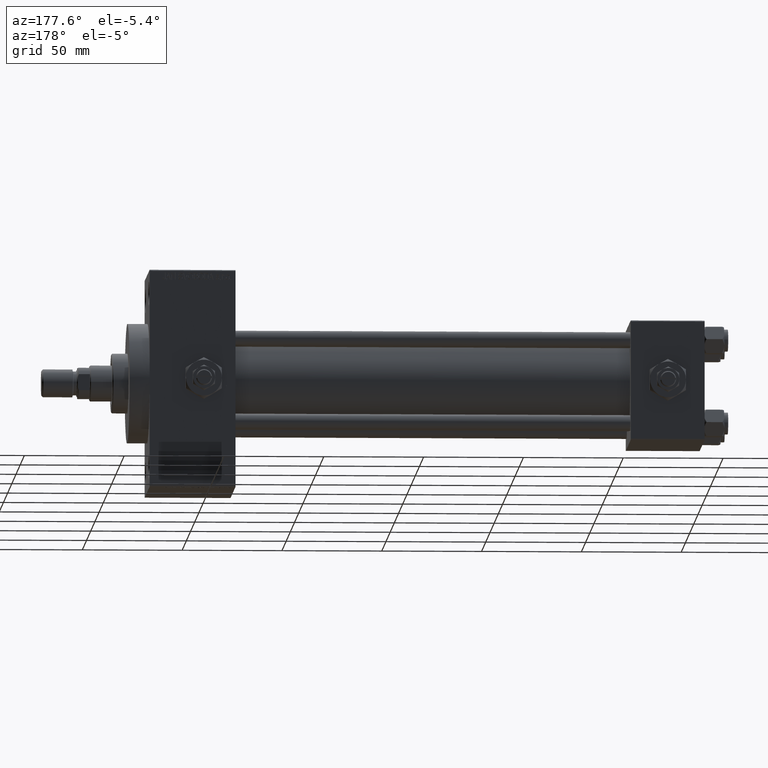
[diagram: clean part render]
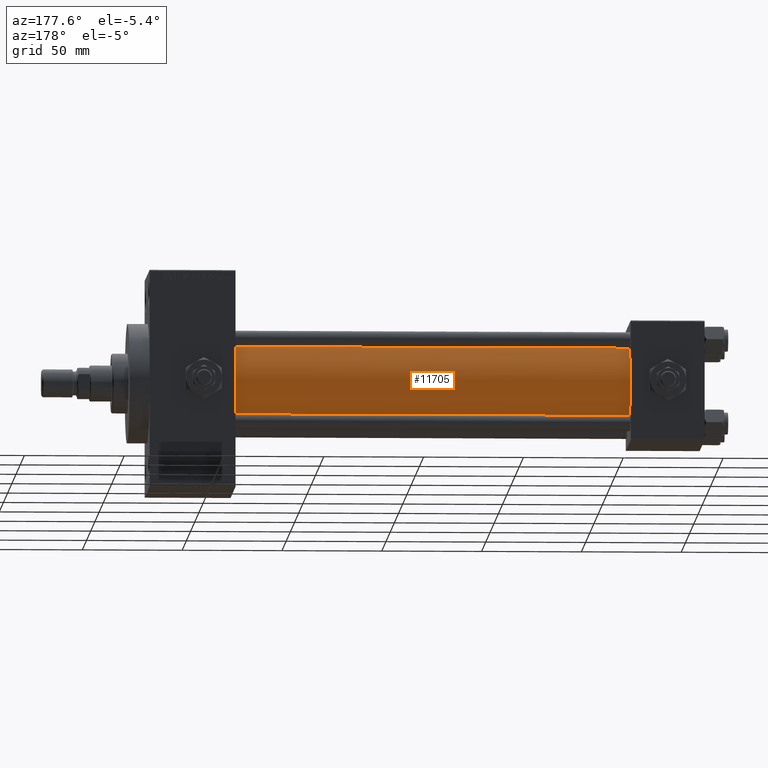
[diagram: same view with one face highlighted and labeled with its STEP entity id]
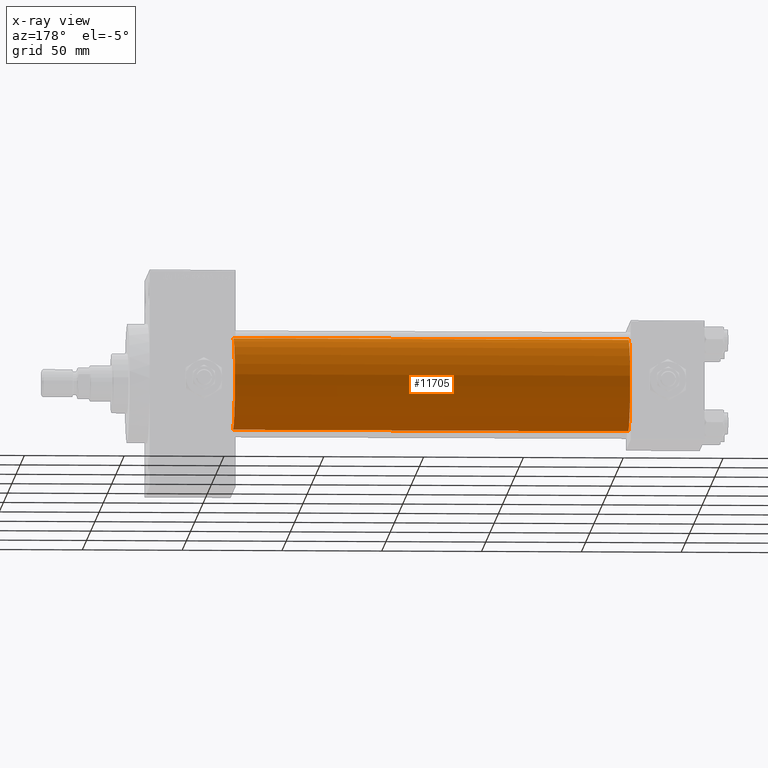
[diagram: x-ray of the same camera — body ghosted, the highlighted face saturated]
A machine part, auxiliary view. The second image highlights one B-rep face of the part: STEP entity #11705.
The next image is the same camera in x-ray: the body ghosted, the highlighted face saturated — about 0% of this face is hidden behind the body in this view.
In plain terms, the highlighted cylindrical surface (partial cylindrical patch) has radius 23 mm, axis along (-1, -0, -0).
Its self-contained STEP definition (entity closure, byte-faithful):
#3665 = AXIS2_PLACEMENT_3D ( 'NONE', #31009, #27459, #39057 ) ;
#3876 = EDGE_CURVE ( 'NONE', #23295, #24444, #36221, .T. ) ;
#7547 = CARTESIAN_POINT ( 'NONE',  ( 235.0000000000000284, 2.146024240737016609E-16, -23.00000000000000000 ) ) ;
#7846 = FACE_OUTER_BOUND ( 'NONE', #21996, .T. ) ;
#8295 = DIRECTION ( 'NONE',  ( 0.000000000000000000, 0.000000000000000000, -1.000000000000000000 ) ) ;
#9435 = DIRECTION ( 'NONE',  ( 0.000000000000000000, 0.000000000000000000, 1.000000000000000000 ) ) ;
#10044 = VECTOR ( 'NONE', #27309, 1000.000000000000000 ) ;
#11705 = ADVANCED_FACE ( 'NONE', ( #7846 ), #12104, .T. ) ;
#12104 = CYLINDRICAL_SURFACE ( 'NONE', #3665, 23.00000000000000000 ) ;
#12459 = CARTESIAN_POINT ( 'NONE',  ( 235.0000000000000284, -2.602085213965210642E-15, 23.00000000000000000 ) ) ;
#21996 = EDGE_LOOP ( 'NONE', ( #48458, #45815, #24477, #35240 ) ) ;
#23295 = VERTEX_POINT ( 'NONE', #7547 ) ;
#24397 = LINE ( 'NONE', #29167, #30060 ) ;
#24444 = VERTEX_POINT ( 'NONE', #37650 ) ;
#24477 = ORIENTED_EDGE ( 'NONE', *, *, #29252, .T. ) ;
#25331 = EDGE_CURVE ( 'NONE', #23295, #28512, #24397, .T. ) ;
#27309 = DIRECTION ( 'NONE',  ( -1.000000000000000000, -0.000000000000000000, -0.000000000000000000 ) ) ;
#27378 = AXIS2_PLACEMENT_3D ( 'NONE', #38246, #30954, #8295 ) ;
#27459 = DIRECTION ( 'NONE',  ( -1.000000000000000000, -0.000000000000000000, -0.000000000000000000 ) ) ;
#28337 = EDGE_CURVE ( 'NONE', #24444, #33445, #35120, .T. ) ;
#28512 = VERTEX_POINT ( 'NONE', #36836 ) ;
#29167 = CARTESIAN_POINT ( 'NONE',  ( 235.0000000000000284, 2.146024240737016609E-16, -23.00000000000000000 ) ) ;
#29252 = EDGE_CURVE ( 'NONE', #28512, #33445, #43046, .T. ) ;
#30060 = VECTOR ( 'NONE', #36476, 1000.000000000000000 ) ;
#30954 = DIRECTION ( 'NONE',  ( 1.000000000000000000, 0.000000000000000000, 0.000000000000000000 ) ) ;
#31009 = CARTESIAN_POINT ( 'NONE',  ( 235.0000000000000284, -2.602085213965210642E-15, 0.000000000000000000 ) ) ;
#33445 = VERTEX_POINT ( 'NONE', #37921 ) ;
#35120 = LINE ( 'NONE', #12459, #10044 ) ;
#35240 = ORIENTED_EDGE ( 'NONE', *, *, #28337, .F. ) ;
#36221 = CIRCLE ( 'NONE', #27378, 23.00000000000000000 ) ;
#36476 = DIRECTION ( 'NONE',  ( -1.000000000000000000, -0.000000000000000000, -0.000000000000000000 ) ) ;
#36836 = CARTESIAN_POINT ( 'NONE',  ( 37.00000000000000711, 2.146024240737016609E-16, -23.00000000000000000 ) ) ;
#37650 = CARTESIAN_POINT ( 'NONE',  ( 235.0000000000000284, -2.602085213965210642E-15, 23.00000000000000000 ) ) ;
#37921 = CARTESIAN_POINT ( 'NONE',  ( 37.00000000000000711, -2.602085213965210642E-15, 23.00000000000000000 ) ) ;
#38246 = CARTESIAN_POINT ( 'NONE',  ( 235.0000000000000284, -2.602085213965210642E-15, 0.000000000000000000 ) ) ;
#39057 = DIRECTION ( 'NONE',  ( 0.000000000000000000, 0.000000000000000000, 1.000000000000000000 ) ) ;
#39164 = DIRECTION ( 'NONE',  ( 1.000000000000000000, -0.000000000000000000, 0.000000000000000000 ) ) ;
#43046 = CIRCLE ( 'NONE', #44651, 23.00000000000000000 ) ;
#44651 = AXIS2_PLACEMENT_3D ( 'NONE', #46711, #39164, #9435 ) ;
#45815 = ORIENTED_EDGE ( 'NONE', *, *, #25331, .T. ) ;
#46711 = CARTESIAN_POINT ( 'NONE',  ( 37.00000000000000711, -2.602085213965210642E-15, 0.000000000000000000 ) ) ;
#48458 = ORIENTED_EDGE ( 'NONE', *, *, #3876, .F. ) ;